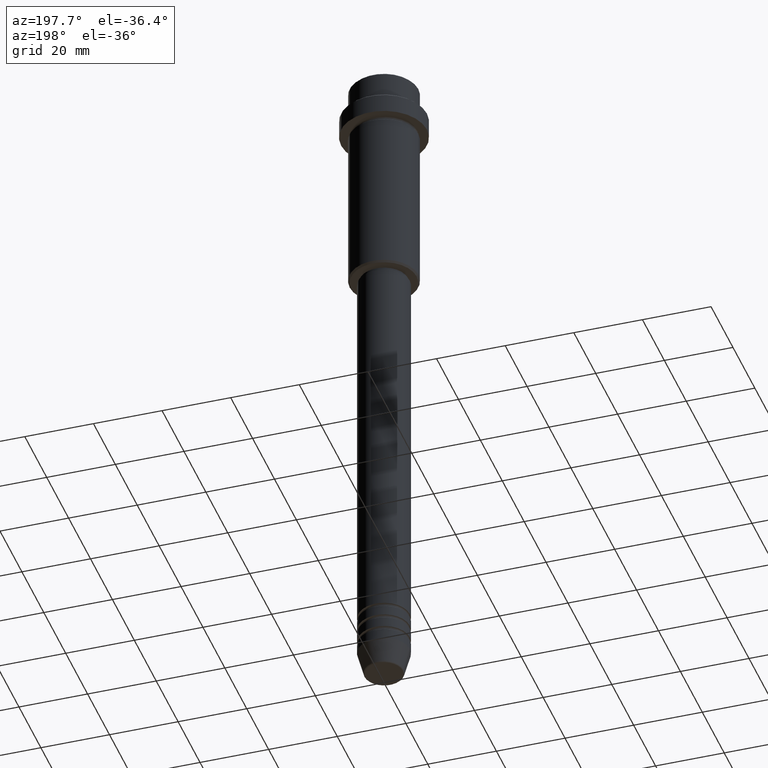
[diagram: clean part render]
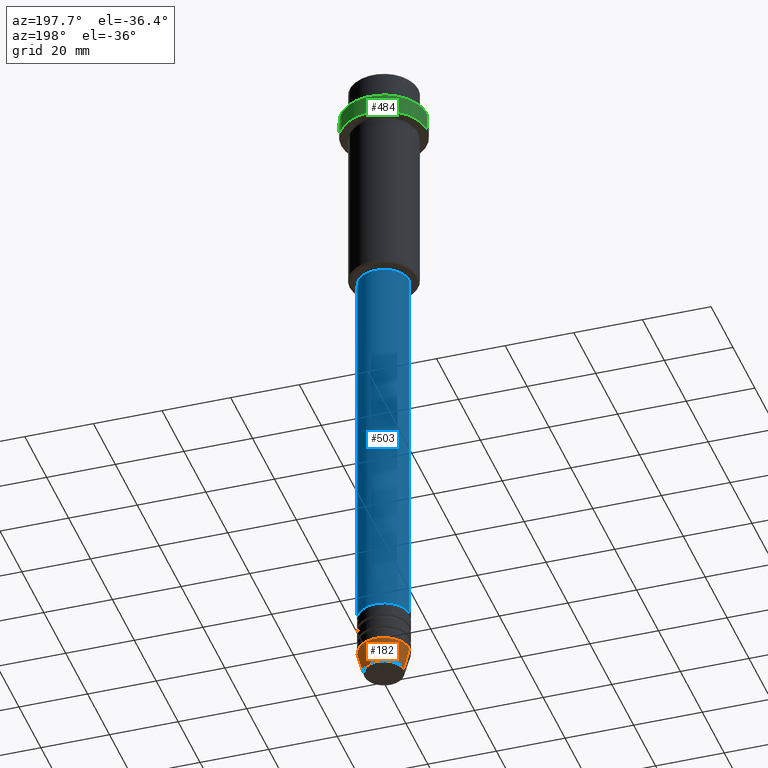
[diagram: same view with three faces highlighted in distinct colors, each labeled with its STEP entity id]
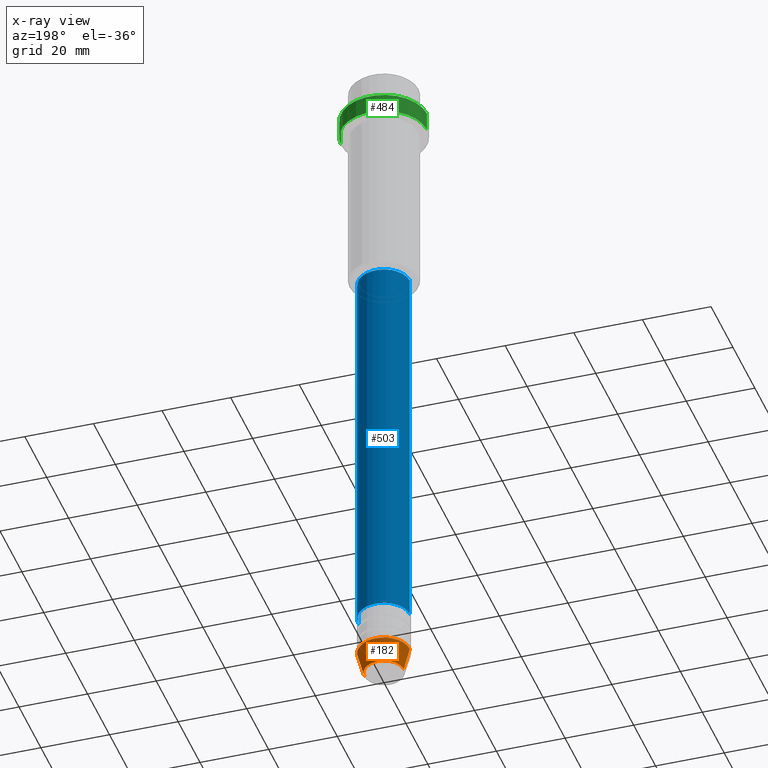
[diagram: x-ray of the same camera — body ghosted, the three highlighted faces saturated]
A machine part, auxiliary view with three faces highlighted in distinct colors.
The next image is the same camera in x-ray (body ghosted, the three faces saturated) — at least one of them is partly hidden behind the body in this view.
Their STEP definitions:

[orange] entity #182 — the highlighted conical surface has half-angle 15 deg.
#43 = DIRECTION ( 'NONE',  ( 1.000000000000000000, 0.000000000000000000, 0.000000000000000000 ) ) ;
#71 = EDGE_CURVE ( 'NONE', #1307, #438, #1364, .T. ) ;
#130 = AXIS2_PLACEMENT_3D ( 'NONE', #483, #350, #1040 ) ;
#179 = CARTESIAN_POINT ( 'NONE',  ( -5.723655072137191269, 8.097153428560735915E-16, -199.6294095225512706 ) ) ;
#182 = ADVANCED_FACE ( 'NONE', ( #889 ), #929, .T. ) ;
#209 = ORIENTED_EDGE ( 'NONE', *, *, #578, .T. ) ;
#225 = CARTESIAN_POINT ( 'NONE',  ( 7.500000000000000000, 0.000000000000000000, -193.0000000000000000 ) ) ;
#250 = CARTESIAN_POINT ( 'NONE',  ( 5.723655072137191269, 0.000000000000000000, -199.6294095225512706 ) ) ;
#253 = DIRECTION ( 'NONE',  ( -0.000000000000000000, -0.000000000000000000, 1.000000000000000000 ) ) ;
#259 = EDGE_CURVE ( 'NONE', #1060, #438, #1387, .T. ) ;
#306 = ORIENTED_EDGE ( 'NONE', *, *, #259, .T. ) ;
#350 = DIRECTION ( 'NONE',  ( -0.000000000000000000, -0.000000000000000000, 1.000000000000000000 ) ) ;
#390 = EDGE_LOOP ( 'NONE', ( #209, #306, #534, #649 ) ) ;
#438 = VERTEX_POINT ( 'NONE', #654 ) ;
#483 = CARTESIAN_POINT ( 'NONE',  ( 0.000000000000000000, 0.000000000000000000, -193.0000000000000000 ) ) ;
#534 = ORIENTED_EDGE ( 'NONE', *, *, #71, .F. ) ;
#551 = DIRECTION ( 'NONE',  ( 0.2588190451025213501, 0.000000000000000000, 0.9659258262890680902 ) ) ;
#578 = EDGE_CURVE ( 'NONE', #1035, #1060, #758, .T. ) ;
#584 = DIRECTION ( 'NONE',  ( -0.000000000000000000, -0.000000000000000000, 1.000000000000000000 ) ) ;
#626 = DIRECTION ( 'NONE',  ( -0.2588190451025213501, 3.169619151431772337E-17, 0.9659258262890680902 ) ) ;
#635 = AXIS2_PLACEMENT_3D ( 'NONE', #1234, #253, #728 ) ;
#649 = ORIENTED_EDGE ( 'NONE', *, *, #915, .F. ) ;
#654 = CARTESIAN_POINT ( 'NONE',  ( -7.500000000000000000, 9.184850993605147944E-16, -193.0000000000000000 ) ) ;
#713 = AXIS2_PLACEMENT_3D ( 'NONE', #1127, #584, #43 ) ;
#728 = DIRECTION ( 'NONE',  ( 1.000000000000000000, 0.000000000000000000, 0.000000000000000000 ) ) ;
#758 = CIRCLE ( 'NONE', #713, 5.723655072137191269 ) ;
#854 = VECTOR ( 'NONE', #626, 1000.000000000000000 ) ;
#889 = FACE_OUTER_BOUND ( 'NONE', #390, .T. ) ;
#915 = EDGE_CURVE ( 'NONE', #1035, #1307, #1205, .T. ) ;
#929 = CONICAL_SURFACE ( 'NONE', #635, 7.500000000000000000, 0.2617993877991500740 ) ;
#1035 = VERTEX_POINT ( 'NONE', #250 ) ;
#1040 = DIRECTION ( 'NONE',  ( 1.000000000000000000, 0.000000000000000000, 0.000000000000000000 ) ) ;
#1060 = VERTEX_POINT ( 'NONE', #179 ) ;
#1127 = CARTESIAN_POINT ( 'NONE',  ( 0.000000000000000000, 0.000000000000000000, -199.6294095225512706 ) ) ;
#1146 = CARTESIAN_POINT ( 'NONE',  ( -7.500000000000000000, 9.184850993605147944E-16, -193.0000000000000000 ) ) ;
#1205 = LINE ( 'NONE', #225, #1219 ) ;
#1219 = VECTOR ( 'NONE', #551, 1000.000000000000000 ) ;
#1234 = CARTESIAN_POINT ( 'NONE',  ( 0.000000000000000000, 0.000000000000000000, -193.0000000000000000 ) ) ;
#1307 = VERTEX_POINT ( 'NONE', #1394 ) ;
#1364 = CIRCLE ( 'NONE', #130, 7.500000000000000000 ) ;
#1387 = LINE ( 'NONE', #1146, #854 ) ;
#1394 = CARTESIAN_POINT ( 'NONE',  ( 7.500000000000000000, 0.000000000000000000, -193.0000000000000000 ) ) ;

[blue] entity #503 — the highlighted cylindrical surface (edge-blend (fillet) strip) has radius 7.5 mm, axis along (-0, -0, 1).
#7 = ORIENTED_EDGE ( 'NONE', *, *, #102, .F. ) ;
#24 = CARTESIAN_POINT ( 'NONE',  ( -7.500000000000000000, 9.184850993605147944E-16, -180.9999999999998863 ) ) ;
#49 = FACE_OUTER_BOUND ( 'NONE', #326, .T. ) ;
#63 = CIRCLE ( 'NONE', #356, 7.500000000000000000 ) ;
#102 = EDGE_CURVE ( 'NONE', #164, #1186, #459, .T. ) ;
#111 = DIRECTION ( 'NONE',  ( -0.000000000000000000, -0.000000000000000000, 1.000000000000000000 ) ) ;
#164 = VERTEX_POINT ( 'NONE', #362 ) ;
#223 = ORIENTED_EDGE ( 'NONE', *, *, #405, .T. ) ;
#232 = ORIENTED_EDGE ( 'NONE', *, *, #243, .F. ) ;
#243 = EDGE_CURVE ( 'NONE', #1186, #1261, #568, .T. ) ;
#326 = EDGE_LOOP ( 'NONE', ( #223, #896, #232, #7 ) ) ;
#327 = EDGE_CURVE ( 'NONE', #997, #1261, #1087, .T. ) ;
#356 = AXIS2_PLACEMENT_3D ( 'NONE', #1099, #111, #660 ) ;
#362 = CARTESIAN_POINT ( 'NONE',  ( 7.500000000000000000, 0.000000000000000000, -180.9999999999998863 ) ) ;
#405 = EDGE_CURVE ( 'NONE', #164, #997, #63, .T. ) ;
#448 = VECTOR ( 'NONE', #1289, 1000.000000000000000 ) ;
#459 = LINE ( 'NONE', #894, #808 ) ;
#503 = ADVANCED_FACE ( 'NONE', ( #49 ), #1351, .T. ) ;
#545 = CARTESIAN_POINT ( 'NONE',  ( -7.500000000000000000, 9.184850993605147944E-16, 0.000000000000000000 ) ) ;
#568 = CIRCLE ( 'NONE', #1049, 7.500000000000000000 ) ;
#618 = CARTESIAN_POINT ( 'NONE',  ( 0.000000000000000000, 0.000000000000000000, -66.00000000000000000 ) ) ;
#645 = CARTESIAN_POINT ( 'NONE',  ( -7.500000000000000000, 9.184850993605147944E-16, -66.00000000000000000 ) ) ;
#660 = DIRECTION ( 'NONE',  ( 1.000000000000000000, 0.000000000000000000, 0.000000000000000000 ) ) ;
#773 = DIRECTION ( 'NONE',  ( 1.000000000000000000, 0.000000000000000000, 0.000000000000000000 ) ) ;
#778 = AXIS2_PLACEMENT_3D ( 'NONE', #1004, #901, #773 ) ;
#808 = VECTOR ( 'NONE', #1012, 1000.000000000000000 ) ;
#814 = CARTESIAN_POINT ( 'NONE',  ( 7.500000000000000000, 0.000000000000000000, -66.00000000000000000 ) ) ;
#894 = CARTESIAN_POINT ( 'NONE',  ( 7.500000000000000000, 0.000000000000000000, 0.000000000000000000 ) ) ;
#896 = ORIENTED_EDGE ( 'NONE', *, *, #327, .T. ) ;
#901 = DIRECTION ( 'NONE',  ( -0.000000000000000000, -0.000000000000000000, 1.000000000000000000 ) ) ;
#997 = VERTEX_POINT ( 'NONE', #24 ) ;
#1004 = CARTESIAN_POINT ( 'NONE',  ( 0.000000000000000000, 0.000000000000000000, 0.000000000000000000 ) ) ;
#1012 = DIRECTION ( 'NONE',  ( -0.000000000000000000, -0.000000000000000000, 1.000000000000000000 ) ) ;
#1046 = DIRECTION ( 'NONE',  ( -0.000000000000000000, -0.000000000000000000, 1.000000000000000000 ) ) ;
#1049 = AXIS2_PLACEMENT_3D ( 'NONE', #618, #1046, #1166 ) ;
#1087 = LINE ( 'NONE', #545, #448 ) ;
#1099 = CARTESIAN_POINT ( 'NONE',  ( 0.000000000000000000, 0.000000000000000000, -180.9999999999998863 ) ) ;
#1166 = DIRECTION ( 'NONE',  ( 1.000000000000000000, 0.000000000000000000, 0.000000000000000000 ) ) ;
#1186 = VERTEX_POINT ( 'NONE', #814 ) ;
#1261 = VERTEX_POINT ( 'NONE', #645 ) ;
#1289 = DIRECTION ( 'NONE',  ( -0.000000000000000000, -0.000000000000000000, 1.000000000000000000 ) ) ;
#1351 = CYLINDRICAL_SURFACE ( 'NONE', #778, 7.500000000000000000 ) ;

[green] entity #484 — the highlighted cylindrical surface (partial cylindrical patch) has radius 12.5 mm, axis along (-0, -0, 1).
#89 = CARTESIAN_POINT ( 'NONE',  ( -12.50000000000000000, 1.530808498934191521E-15, -9.500000000000005329 ) ) ;
#123 = EDGE_CURVE ( 'NONE', #884, #573, #1006, .T. ) ;
#183 = DIRECTION ( 'NONE',  ( -0.000000000000000000, -0.000000000000000000, 1.000000000000000000 ) ) ;
#192 = AXIS2_PLACEMENT_3D ( 'NONE', #747, #981, #303 ) ;
#214 = EDGE_CURVE ( 'NONE', #623, #573, #382, .T. ) ;
#260 = DIRECTION ( 'NONE',  ( 0.000000000000000000, 0.000000000000000000, -1.000000000000000000 ) ) ;
#303 = DIRECTION ( 'NONE',  ( 1.000000000000000000, 0.000000000000000000, 0.000000000000000000 ) ) ;
#354 = DIRECTION ( 'NONE',  ( -0.000000000000000000, -0.000000000000000000, 1.000000000000000000 ) ) ;
#382 = LINE ( 'NONE', #1161, #519 ) ;
#386 = ORIENTED_EDGE ( 'NONE', *, *, #1169, .T. ) ;
#417 = ORIENTED_EDGE ( 'NONE', *, *, #214, .F. ) ;
#467 = AXIS2_PLACEMENT_3D ( 'NONE', #693, #354, #1011 ) ;
#484 = ADVANCED_FACE ( 'NONE', ( #562 ), #1105, .T. ) ;
#493 = LINE ( 'NONE', #1052, #1410 ) ;
#512 = ORIENTED_EDGE ( 'NONE', *, *, #123, .T. ) ;
#519 = VECTOR ( 'NONE', #183, 1000.000000000000000 ) ;
#529 = CARTESIAN_POINT ( 'NONE',  ( -12.50000000000000000, 1.530808498934191521E-15, -15.00000000000000000 ) ) ;
#562 = FACE_OUTER_BOUND ( 'NONE', #1102, .T. ) ;
#573 = VERTEX_POINT ( 'NONE', #911 ) ;
#623 = VERTEX_POINT ( 'NONE', #698 ) ;
#693 = CARTESIAN_POINT ( 'NONE',  ( 0.000000000000000000, 0.000000000000000000, 0.000000000000000000 ) ) ;
#694 = DIRECTION ( 'NONE',  ( 1.000000000000000000, 0.000000000000000000, 0.000000000000000000 ) ) ;
#698 = CARTESIAN_POINT ( 'NONE',  ( 12.50000000000000000, 0.000000000000000000, -15.00000000000000000 ) ) ;
#738 = CIRCLE ( 'NONE', #192, 12.50000000000000000 ) ;
#747 = CARTESIAN_POINT ( 'NONE',  ( 0.000000000000000000, 0.000000000000000000, -15.00000000000000000 ) ) ;
#795 = EDGE_CURVE ( 'NONE', #623, #1314, #738, .T. ) ;
#884 = VERTEX_POINT ( 'NONE', #89 ) ;
#911 = CARTESIAN_POINT ( 'NONE',  ( 12.50000000000000000, 0.000000000000000000, -9.500000000000005329 ) ) ;
#981 = DIRECTION ( 'NONE',  ( -0.000000000000000000, -0.000000000000000000, 1.000000000000000000 ) ) ;
#1006 = CIRCLE ( 'NONE', #1137, 12.50000000000000000 ) ;
#1008 = ORIENTED_EDGE ( 'NONE', *, *, #795, .T. ) ;
#1011 = DIRECTION ( 'NONE',  ( 1.000000000000000000, 0.000000000000000000, 0.000000000000000000 ) ) ;
#1029 = CARTESIAN_POINT ( 'NONE',  ( 0.000000000000000000, 0.000000000000000000, -9.500000000000005329 ) ) ;
#1052 = CARTESIAN_POINT ( 'NONE',  ( -12.50000000000000000, 1.530808498934191521E-15, 0.000000000000000000 ) ) ;
#1102 = EDGE_LOOP ( 'NONE', ( #1008, #386, #512, #417 ) ) ;
#1105 = CYLINDRICAL_SURFACE ( 'NONE', #467, 12.50000000000000000 ) ;
#1137 = AXIS2_PLACEMENT_3D ( 'NONE', #1029, #260, #694 ) ;
#1161 = CARTESIAN_POINT ( 'NONE',  ( 12.50000000000000000, 0.000000000000000000, 0.000000000000000000 ) ) ;
#1163 = DIRECTION ( 'NONE',  ( -0.000000000000000000, -0.000000000000000000, 1.000000000000000000 ) ) ;
#1169 = EDGE_CURVE ( 'NONE', #1314, #884, #493, .T. ) ;
#1314 = VERTEX_POINT ( 'NONE', #529 ) ;
#1410 = VECTOR ( 'NONE', #1163, 1000.000000000000000 ) ;